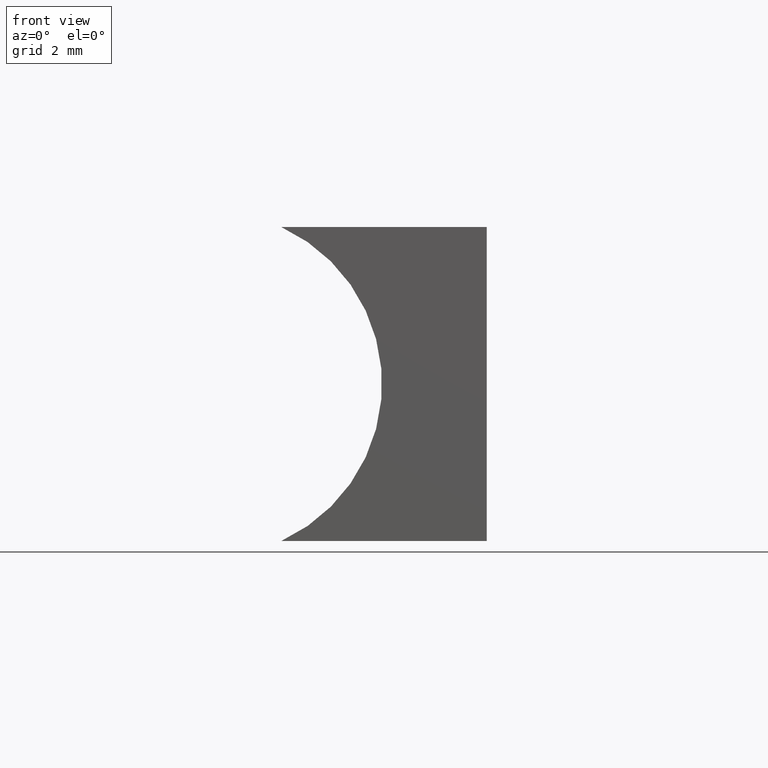
[diagram: clean part render]
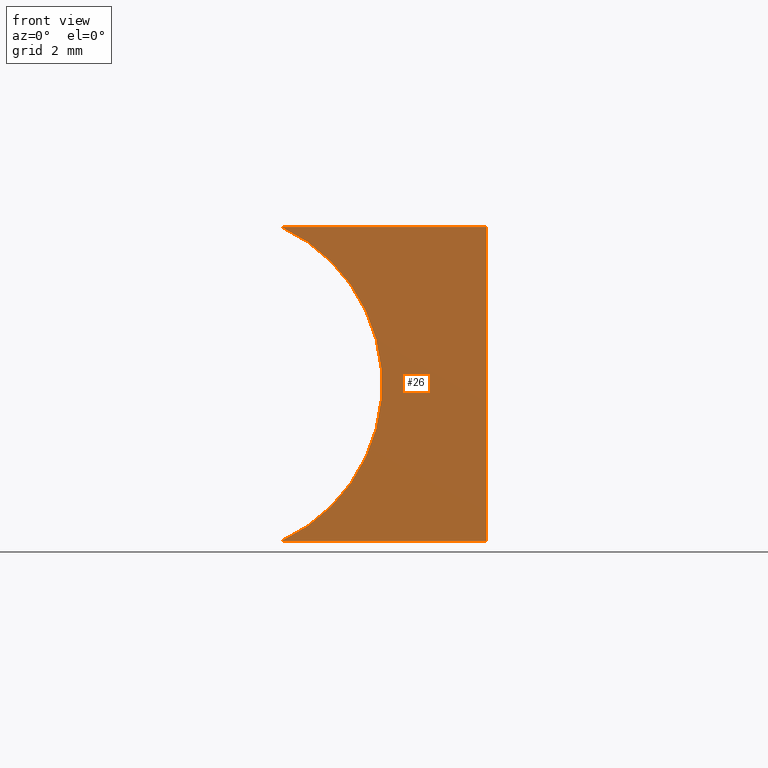
[diagram: same view with one face highlighted and labeled with its STEP entity id]
A machine part, front view. The second image highlights one B-rep face of the part: STEP entity #26.
In plain terms, the highlighted planar face has unit normal (0, 1, 0).
Its self-contained STEP definition (entity closure, byte-faithful):
#2 = CARTESIAN_POINT ( 'NONE',  ( -3.925227291513251800, 0.0000000000000000000, 5.999999999999998200 ) ) ;
#6 = LINE ( 'NONE', #115, #55 ) ;
#21 = VERTEX_POINT ( 'NONE', #2 ) ;
#25 = VECTOR ( 'NONE', #46, 1000.000000000000000 ) ;
#26 = ADVANCED_FACE ( 'NONE', ( #203 ), #79, .F. ) ;
#29 = VERTEX_POINT ( 'NONE', #200 ) ;
#31 = DIRECTION ( 'NONE',  ( -0.0000000000000000000, -0.0000000000000000000, -1.000000000000000000 ) ) ;
#35 = AXIS2_PLACEMENT_3D ( 'NONE', #162, #129, #97 ) ;
#46 = DIRECTION ( 'NONE',  ( -1.000000000000000000, 0.0000000000000000000, 0.0000000000000000000 ) ) ;
#55 = VECTOR ( 'NONE', #99, 1000.000000000000000 ) ;
#58 = CARTESIAN_POINT ( 'NONE',  ( -5.299999999999998900, 0.0000000000000000000, 2.999999999999998200 ) ) ;
#59 = ORIENTED_EDGE ( 'NONE', *, *, #136, .F. ) ;
#63 = DIRECTION ( 'NONE',  ( -0.0000000000000000000, -1.000000000000000000, -0.0000000000000000000 ) ) ;
#69 = LINE ( 'NONE', #175, #25 ) ;
#73 = EDGE_CURVE ( 'NONE', #188, #87, #117, .T. ) ;
#77 = AXIS2_PLACEMENT_3D ( 'NONE', #58, #63, #134 ) ;
#79 = PLANE ( 'NONE',  #35 ) ;
#87 = VERTEX_POINT ( 'NONE', #147 ) ;
#89 = EDGE_LOOP ( 'NONE', ( #184, #163, #59, #153 ) ) ;
#97 = DIRECTION ( 'NONE',  ( 0.0000000000000000000, -0.0000000000000000000, 1.000000000000000000 ) ) ;
#99 = DIRECTION ( 'NONE',  ( 1.000000000000000000, -0.0000000000000000000, 4.419421722985211700E-016 ) ) ;
#114 = CIRCLE ( 'NONE', #77, 3.299999999999998000 ) ;
#115 = CARTESIAN_POINT ( 'NONE',  ( 0.0000000000000000000, 0.0000000000000000000, 6.000000000000000000 ) ) ;
#117 = LINE ( 'NONE', #190, #185 ) ;
#121 = EDGE_CURVE ( 'NONE', #87, #29, #69, .T. ) ;
#129 = DIRECTION ( 'NONE',  ( 0.0000000000000000000, 1.000000000000000000, 0.0000000000000000000 ) ) ;
#134 = DIRECTION ( 'NONE',  ( 0.0000000000000000000, 0.0000000000000000000, 1.000000000000000000 ) ) ;
#136 = EDGE_CURVE ( 'NONE', #21, #188, #6, .T. ) ;
#147 = CARTESIAN_POINT ( 'NONE',  ( 0.0000000000000000000, 0.0000000000000000000, 0.0000000000000000000 ) ) ;
#153 = ORIENTED_EDGE ( 'NONE', *, *, #186, .F. ) ;
#162 = CARTESIAN_POINT ( 'NONE',  ( -5.299999999999998900, 0.0000000000000000000, 2.999999999999998200 ) ) ;
#163 = ORIENTED_EDGE ( 'NONE', *, *, #73, .F. ) ;
#175 = CARTESIAN_POINT ( 'NONE',  ( 0.0000000000000000000, 0.0000000000000000000, 0.0000000000000000000 ) ) ;
#180 = CARTESIAN_POINT ( 'NONE',  ( 0.0000000000000000000, 0.0000000000000000000, 6.000000000000000000 ) ) ;
#184 = ORIENTED_EDGE ( 'NONE', *, *, #121, .F. ) ;
#185 = VECTOR ( 'NONE', #31, 1000.000000000000000 ) ;
#186 = EDGE_CURVE ( 'NONE', #29, #21, #114, .T. ) ;
#188 = VERTEX_POINT ( 'NONE', #180 ) ;
#190 = CARTESIAN_POINT ( 'NONE',  ( 0.0000000000000000000, 0.0000000000000000000, 0.0000000000000000000 ) ) ;
#200 = CARTESIAN_POINT ( 'NONE',  ( -3.925227291513245600, 0.0000000000000000000, 4.336808689942017700E-016 ) ) ;
#203 = FACE_OUTER_BOUND ( 'NONE', #89, .T. ) ;